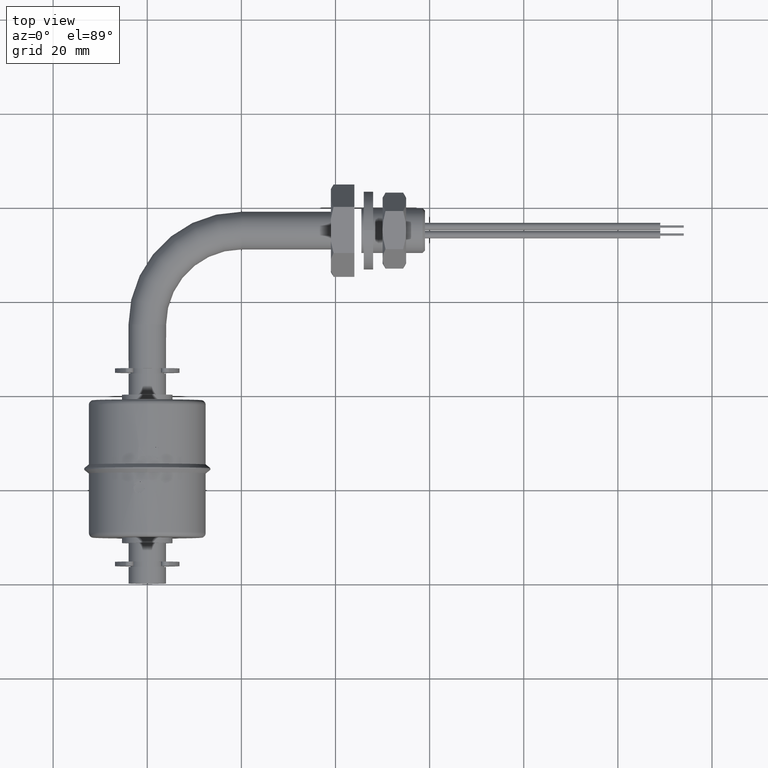
[diagram: clean part render]
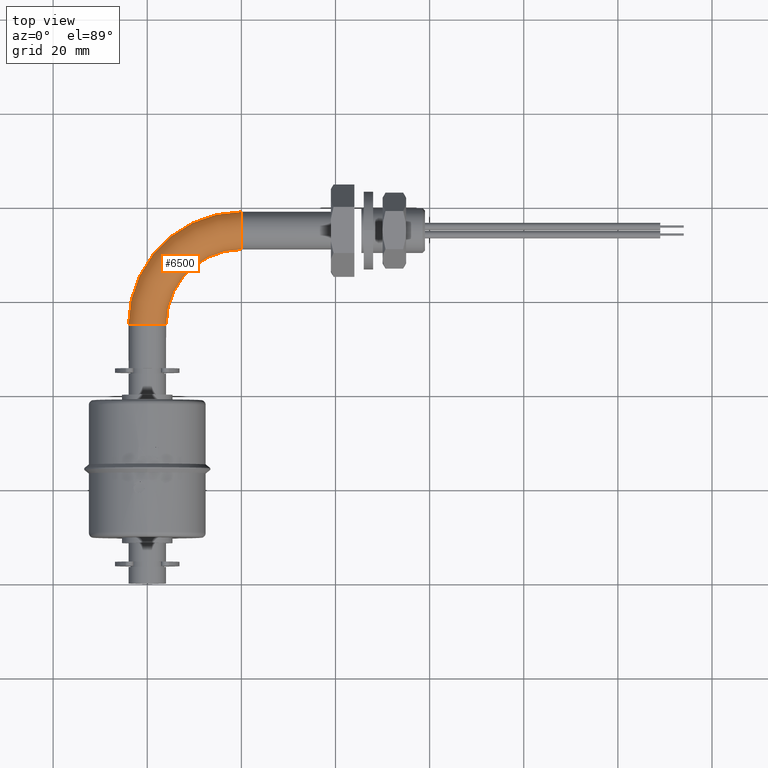
[diagram: same view with one face highlighted and labeled with its STEP entity id]
A machine part, top view. The second image highlights one B-rep face of the part: STEP entity #6500.
In plain terms, the highlighted toroidal blend (fillet) surface has major radius 20 mm and minor (blend) radius 4 mm.
Its self-contained STEP definition (entity closure, byte-faithful):
#397 = ORIENTED_EDGE ( 'NONE', *, *, #1543, .T. ) ;
#403 = CARTESIAN_POINT ( 'NONE',  ( 19.99999999999998934, 70.99999999999998579, 4.898587196589407898E-16 ) ) ;
#604 = VERTEX_POINT ( 'NONE', #403 ) ;
#741 = DIRECTION ( 'NONE',  ( -1.000000000000000000, 0.0000000000000000000, 0.0000000000000000000 ) ) ;
#772 = EDGE_CURVE ( 'NONE', #7395, #604, #5595, .T. ) ;
#813 = VERTEX_POINT ( 'NONE', #1756 ) ;
#906 = EDGE_LOOP ( 'NONE', ( #3707, #397, #7650, #1759, #6493 ) ) ;
#1030 = CIRCLE ( 'NONE', #9813, 23.99999999999999645 ) ;
#1257 = CARTESIAN_POINT ( 'NONE',  ( 3.469446951953614189E-15, 54.99999999999999289, 0.0000000000000000000 ) ) ;
#1313 = DIRECTION ( 'NONE',  ( 0.0000000000000000000, 0.0000000000000000000, 1.000000000000000000 ) ) ;
#1524 = CARTESIAN_POINT ( 'NONE',  ( 4.898587196589413815E-16, 54.99999999999999289, 4.000000000000000000 ) ) ;
#1543 = EDGE_CURVE ( 'NONE', #813, #5930, #4124, .T. ) ;
#1756 = CARTESIAN_POINT ( 'NONE',  ( -3.999999999999996447, 54.99999999999999289, 0.0000000000000000000 ) ) ;
#1759 = ORIENTED_EDGE ( 'NONE', *, *, #772, .T. ) ;
#2240 = AXIS2_PLACEMENT_3D ( 'NONE', #2372, #5605, #3232 ) ;
#2372 = CARTESIAN_POINT ( 'NONE',  ( 3.469446951953614189E-15, 54.99999999999999289, 0.0000000000000000000 ) ) ;
#2662 = CARTESIAN_POINT ( 'NONE',  ( 20.00000000000000000, 54.99999999999999289, 0.0000000000000000000 ) ) ;
#3232 = DIRECTION ( 'NONE',  ( 0.0000000000000000000, 0.0000000000000000000, 1.000000000000000000 ) ) ;
#3241 = EDGE_CURVE ( 'NONE', #813, #3318, #1030, .T. ) ;
#3294 = CARTESIAN_POINT ( 'NONE',  ( 20.00000000000000000, 54.99999999999999289, 4.898587196589412829E-16 ) ) ;
#3318 = VERTEX_POINT ( 'NONE', #6672 ) ;
#3411 = AXIS2_PLACEMENT_3D ( 'NONE', #3294, #6505, #5057 ) ;
#3500 = CARTESIAN_POINT ( 'NONE',  ( 19.99999999999998934, 74.99999999999998579, 0.0000000000000000000 ) ) ;
#3504 = EDGE_CURVE ( 'NONE', #5930, #7395, #7796, .T. ) ;
#3644 = TOROIDAL_SURFACE ( 'NONE', #5165, 19.99999999999999645, 4.000000000000000000 ) ;
#3707 = ORIENTED_EDGE ( 'NONE', *, *, #3241, .F. ) ;
#4124 = CIRCLE ( 'NONE', #2240, 4.000000000000000000 ) ;
#5057 = DIRECTION ( 'NONE',  ( -1.000000000000000000, 0.0000000000000000000, 0.0000000000000000000 ) ) ;
#5092 = DIRECTION ( 'NONE',  ( 1.000000000000000000, 2.832769448823989808E-16, 0.0000000000000000000 ) ) ;
#5165 = AXIS2_PLACEMENT_3D ( 'NONE', #2662, #9790, #6746 ) ;
#5351 = DIRECTION ( 'NONE',  ( 0.0000000000000000000, 1.000000000000000000, 0.0000000000000000000 ) ) ;
#5473 = DIRECTION ( 'NONE',  ( -0.0000000000000000000, -0.0000000000000000000, -1.000000000000000000 ) ) ;
#5595 = CIRCLE ( 'NONE', #3411, 15.99999999999999645 ) ;
#5605 = DIRECTION ( 'NONE',  ( 0.0000000000000000000, 1.000000000000000000, 0.0000000000000000000 ) ) ;
#5930 = VERTEX_POINT ( 'NONE', #1524 ) ;
#5935 = EDGE_CURVE ( 'NONE', #3318, #604, #8340, .T. ) ;
#6489 = CARTESIAN_POINT ( 'NONE',  ( 4.000000000000003553, 54.99999999999999289, 4.898587196589412829E-16 ) ) ;
#6493 = ORIENTED_EDGE ( 'NONE', *, *, #5935, .F. ) ;
#6500 = ADVANCED_FACE ( 'NONE', ( #6906 ), #3644, .T. ) ;
#6505 = DIRECTION ( 'NONE',  ( -0.0000000000000000000, -0.0000000000000000000, -1.000000000000000000 ) ) ;
#6611 = AXIS2_PLACEMENT_3D ( 'NONE', #1257, #5351, #1313 ) ;
#6672 = CARTESIAN_POINT ( 'NONE',  ( 19.99999999999998934, 78.99999999999998579, 0.0000000000000000000 ) ) ;
#6746 = DIRECTION ( 'NONE',  ( -1.000000000000000000, 0.0000000000000000000, 0.0000000000000000000 ) ) ;
#6906 = FACE_OUTER_BOUND ( 'NONE', #906, .T. ) ;
#7395 = VERTEX_POINT ( 'NONE', #6489 ) ;
#7650 = ORIENTED_EDGE ( 'NONE', *, *, #3504, .T. ) ;
#7796 = CIRCLE ( 'NONE', #6611, 4.000000000000000000 ) ;
#8340 = CIRCLE ( 'NONE', #9506, 4.000000000000000000 ) ;
#9506 = AXIS2_PLACEMENT_3D ( 'NONE', #3500, #5092, #9715 ) ;
#9673 = CARTESIAN_POINT ( 'NONE',  ( 20.00000000000000000, 54.99999999999999289, 0.0000000000000000000 ) ) ;
#9715 = DIRECTION ( 'NONE',  ( 0.0000000000000000000, 0.0000000000000000000, 1.000000000000000000 ) ) ;
#9790 = DIRECTION ( 'NONE',  ( -0.0000000000000000000, -0.0000000000000000000, -1.000000000000000000 ) ) ;
#9813 = AXIS2_PLACEMENT_3D ( 'NONE', #9673, #5473, #741 ) ;